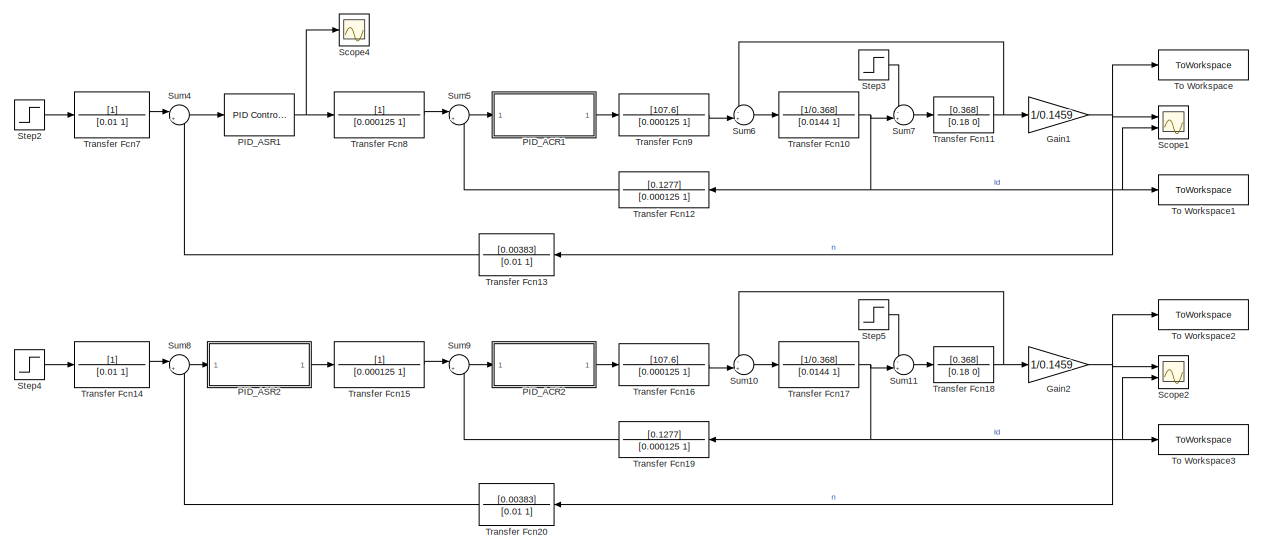
[diagram: root canvas - part 1/2, full width, top band]
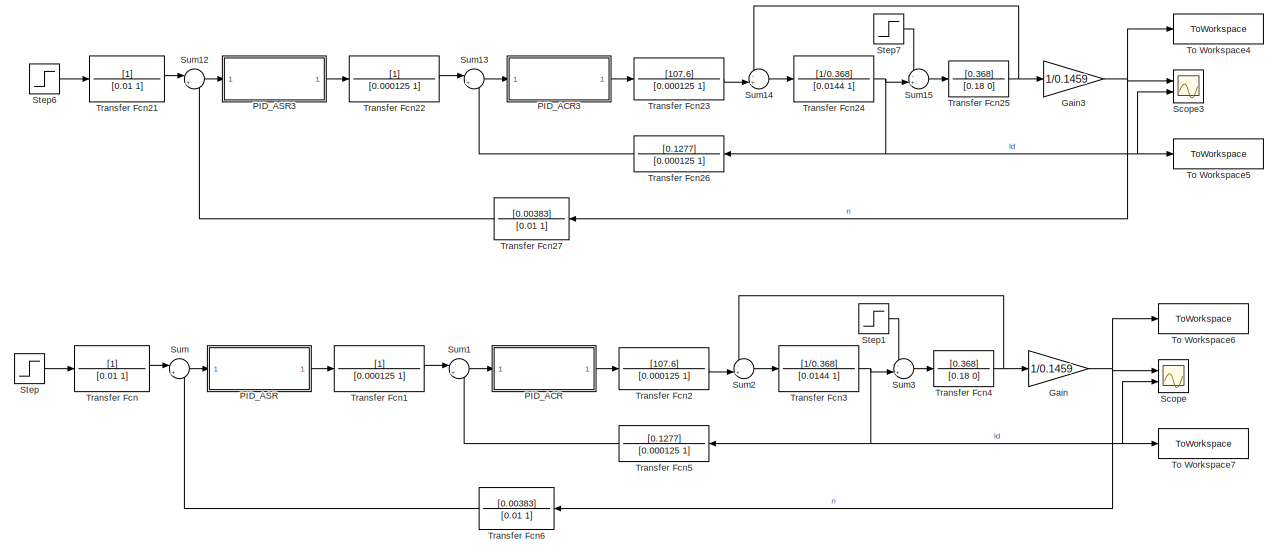
[diagram: root canvas - part 2/2, full width, bottom band]
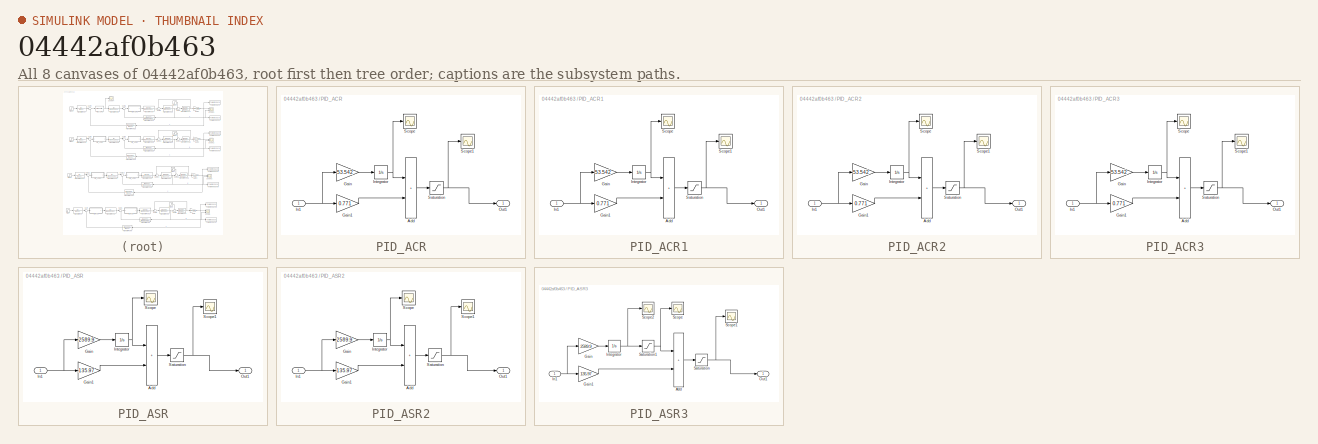
[diagram: thumbnail index - all 8 canvases of the model, root first then tree order]
MODEL slx_04442af0b463
KIND model
CONFIG AbsTol = auto
CONFIG EnableMultiTasking = off
CONFIG FixedStep = auto
CONFIG MaxStep = 1e-5
CONFIG MinStep = auto
CONFIG RelTol = 1e-3
CONFIG SampleTimeConstraint = Unconstrained
CONFIG Solver = ode45
CONFIG SolverName = ode45
CONFIG StartTime = 0.0
CONFIG StopTime = 50.0
BLOCK [Gain] Gain
  Gain = 1/0.1459
BLOCK [Gain] Gain1
  Gain = 1/0.1459
BLOCK [Gain] Gain2
  Gain = 1/0.1459
BLOCK [Gain] Gain3
  Gain = 1/0.1459
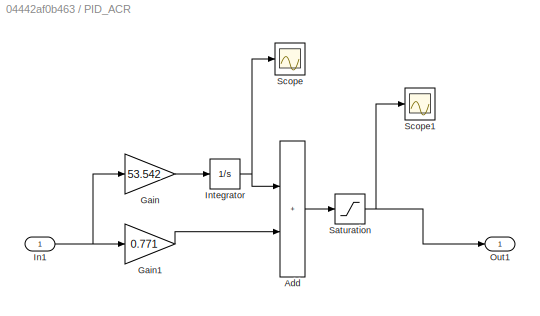
BLOCK [SubSystem] PID_ACR
  Ports = [1, 1]
  RequestExecContextInheritance = off
BLOCK [Sum] PID_ACR/Add
  IconShape = rectangular
  Ports = [2, 1]
BLOCK [Gain] PID_ACR/Gain
  Gain = 53.542
BLOCK [Gain] PID_ACR/Gain1
  Gain = 0.771
BLOCK [Inport] PID_ACR/In1
BLOCK [Integrator] PID_ACR/Integrator
  LimitOutput = on
  LowerSaturationLimit = -5
  Ports = [1, 1]
  UpperSaturationLimit = 5
BLOCK [Outport] PID_ACR/Out1
BLOCK [Saturate] PID_ACR/Saturation
  LowerLimit = -5
  UpperLimit = 5
BLOCK [Scope] PID_ACR/Scope
  Floating = off
  NumInputPorts = 1
  Ports = [1]
  ScopeSpecificationString = Simulink.scopes.TimeScopeBlockCfg('CurrentConfiguration', extmgr.ConfigurationSet(extmgr.Configuration('Core','General UI',true),extmgr.Configuration('Core','Source UI',true),extmgr.Configuration('Sources','WiredSimulink',true,'DataLoggingVariableName','ScopeData3'),extmgr.Configuration('Visuals','Time Domain',true,'SerializedDisplays',{struct('MinYLimReal','-0.47573','MaxYLimReal','4.28156','YLab...<+1402ch>  <repeated x4 — deduplicated; at blocks: Scope>
BLOCK [Scope] PID_ACR/Scope1
  Floating = off
  NumInputPorts = 1
  Ports = [1]
  ScopeSpecificationString = Simulink.scopes.TimeScopeBlockCfg('CurrentConfiguration', extmgr.ConfigurationSet(extmgr.Configuration('Core','General UI',true),extmgr.Configuration('Core','Source UI',true),extmgr.Configuration('Sources','WiredSimulink',true,'DataLoggingVariableName','ScopeData4'),extmgr.Configuration('Visuals','Time Domain',true,'SerializedDisplays',{struct('MinYLimReal','-0.62847','MaxYLimReal','5.62539','YLab...<+1402ch>  <repeated x4 — deduplicated; at blocks: Scope1>
BLOCK [SubSystem] PID_ACR1
  Ports = [1, 1]
  RequestExecContextInheritance = off
BLOCK [Sum] PID_ACR1/Add
  IconShape = rectangular
  Ports = [2, 1]
BLOCK [Gain] PID_ACR1/Gain
  Gain = 53.542
BLOCK [Gain] PID_ACR1/Gain1
  Gain = 0.771
BLOCK [Inport] PID_ACR1/In1
BLOCK [Integrator] PID_ACR1/Integrator
  LimitOutput = on
  LowerSaturationLimit = -5
  Ports = [1, 1]
  UpperSaturationLimit = 5
BLOCK [Outport] PID_ACR1/Out1
BLOCK [Saturate] PID_ACR1/Saturation
  LowerLimit = -5
  UpperLimit = 5
BLOCK [Scope] PID_ACR1/Scope
  Floating = off
  NumInputPorts = 1
  Ports = [1]
BLOCK [Scope] PID_ACR1/Scope1
  Floating = off
  NumInputPorts = 1
  Ports = [1]
BLOCK [SubSystem] PID_ACR2
  Ports = [1, 1]
  RequestExecContextInheritance = off
BLOCK [Sum] PID_ACR2/Add
  IconShape = rectangular
  Ports = [2, 1]
BLOCK [Gain] PID_ACR2/Gain
  Gain = 53.542
BLOCK [Gain] PID_ACR2/Gain1
  Gain = 0.771
BLOCK [Inport] PID_ACR2/In1
BLOCK [Integrator] PID_ACR2/Integrator
  LimitOutput = on
  LowerSaturationLimit = -5
  Ports = [1, 1]
  UpperSaturationLimit = 5
BLOCK [Outport] PID_ACR2/Out1
BLOCK [Saturate] PID_ACR2/Saturation
  LowerLimit = -5
  UpperLimit = 5
BLOCK [Scope] PID_ACR2/Scope
  Floating = off
  NumInputPorts = 1
  Ports = [1]
BLOCK [Scope] PID_ACR2/Scope1
  Floating = off
  NumInputPorts = 1
  Ports = [1]
BLOCK [SubSystem] PID_ACR3
  Ports = [1, 1]
  RequestExecContextInheritance = off
BLOCK [Sum] PID_ACR3/Add
  IconShape = rectangular
  Ports = [2, 1]
BLOCK [Gain] PID_ACR3/Gain
  Gain = 53.542
BLOCK [Gain] PID_ACR3/Gain1
  Gain = 0.771
BLOCK [Inport] PID_ACR3/In1
BLOCK [Integrator] PID_ACR3/Integrator
  LimitOutput = on
  LowerSaturationLimit = -5
  Ports = [1, 1]
  UpperSaturationLimit = 5
BLOCK [Outport] PID_ACR3/Out1
BLOCK [Saturate] PID_ACR3/Saturation
  LowerLimit = -5
  UpperLimit = 5
BLOCK [Scope] PID_ACR3/Scope
  Floating = off
  NumInputPorts = 1
  Ports = [1]
BLOCK [Scope] PID_ACR3/Scope1
  Floating = off
  NumInputPorts = 1
  Ports = [1]
BLOCK [SubSystem] PID_ASR
  Ports = [1, 1]
  RequestExecContextInheritance = off
BLOCK [Sum] PID_ASR/Add
  IconShape = rectangular
  Ports = [2, 1]
BLOCK [Gain] PID_ASR/Gain
  Gain = 2589.9
BLOCK [Gain] PID_ASR/Gain1
  Gain = 135.97
BLOCK [Inport] PID_ASR/In1
BLOCK [Integrator] PID_ASR/Integrator
  LimitOutput = on
  LowerSaturationLimit = -5
  Ports = [1, 1]
  UpperSaturationLimit = 5
BLOCK [Outport] PID_ASR/Out1
BLOCK [Saturate] PID_ASR/Saturation
  LowerLimit = -5
  UpperLimit = 5
BLOCK [Scope] PID_ASR/Scope
  Floating = off
  NumInputPorts = 1
  Ports = [1]
  ScopeSpecificationString = Simulink.scopes.TimeScopeBlockCfg('CurrentConfiguration', extmgr.ConfigurationSet(extmgr.Configuration('Core','General UI',true),extmgr.Configuration('Core','Source UI',true),extmgr.Configuration('Sources','WiredSimulink',true,'DataLoggingVariableName','ScopeData1'),extmgr.Configuration('Visuals','Time Domain',true,'SerializedDisplays',{struct('MinYLimReal','-1.25','MaxYLimReal','11.25','YLabelRea...<+1355ch>
BLOCK [Scope] PID_ASR/Scope1
  Floating = off
  NumInputPorts = 1
  Ports = [1]
  ScopeSpecificationString = Simulink.scopes.TimeScopeBlockCfg('CurrentConfiguration', extmgr.ConfigurationSet(extmgr.Configuration('Core','General UI',true),extmgr.Configuration('Core','Source UI',true),extmgr.Configuration('Sources','WiredSimulink',true,'DataLoggingVariableName','ScopeData2'),extmgr.Configuration('Visuals','Time Domain',true,'SerializedDisplays',{struct('MinYLimReal','-1.25','MaxYLimReal','11.25','YLabelRea...<+1355ch>  <repeated x3 — deduplicated; at blocks: Scope1>
BLOCK [Reference] PID_ASR1  REF=simulink/Continuous/PID Controller
  Ports = [1, 1]
  SourceBlock = simulink/Continuous/PID Controller
  SourceProductBaseCode = SL
  SourceType = PID 1dof
BLOCK [SubSystem] PID_ASR2
  Ports = [1, 1]
  RequestExecContextInheritance = off
BLOCK [Sum] PID_ASR2/Add
  IconShape = rectangular
  Ports = [2, 1]
BLOCK [Gain] PID_ASR2/Gain
  Gain = 2589.9
BLOCK [Gain] PID_ASR2/Gain1
  Gain = 135.97
BLOCK [Inport] PID_ASR2/In1
BLOCK [Integrator] PID_ASR2/Integrator
  LowerSaturationLimit = -5
  Ports = [1, 1]
  UpperSaturationLimit = 5
BLOCK [Outport] PID_ASR2/Out1
BLOCK [Saturate] PID_ASR2/Saturation
  LowerLimit = -5
  UpperLimit = 5
BLOCK [Scope] PID_ASR2/Scope
  Floating = off
  NumInputPorts = 1
  Ports = [1]
  ScopeSpecificationString = Simulink.scopes.TimeScopeBlockCfg('CurrentConfiguration', extmgr.ConfigurationSet(extmgr.Configuration('Core','General UI',true),extmgr.Configuration('Core','Source UI',true),extmgr.Configuration('Sources','WiredSimulink',true,'DataLoggingVariableName','ScopeData1'),extmgr.Configuration('Visuals','Time Domain',true,'SerializedDisplays',{struct('MinYLimReal','-348959.96716','MaxYLimReal','3140639.7...<+1407ch>
BLOCK [Scope] PID_ASR2/Scope1
  Floating = off
  NumInputPorts = 1
  Ports = [1]
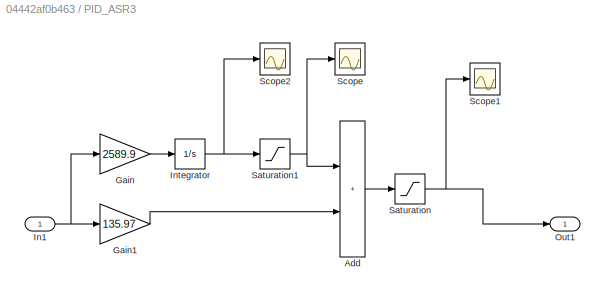
BLOCK [SubSystem] PID_ASR3
  Ports = [1, 1]
  RequestExecContextInheritance = off
BLOCK [Sum] PID_ASR3/Add
  IconShape = rectangular
  Ports = [2, 1]
BLOCK [Gain] PID_ASR3/Gain
  Gain = 2589.9
BLOCK [Gain] PID_ASR3/Gain1
  Gain = 135.97
BLOCK [Inport] PID_ASR3/In1
BLOCK [Integrator] PID_ASR3/Integrator
  LowerSaturationLimit = -10
  Ports = [1, 1]
  UpperSaturationLimit = 10
BLOCK [Outport] PID_ASR3/Out1
BLOCK [Saturate] PID_ASR3/Saturation
  LowerLimit = -5
  UpperLimit = 5
BLOCK [Saturate] PID_ASR3/Saturation1
  LowerLimit = -5
  UpperLimit = 5
BLOCK [Scope] PID_ASR3/Scope
  Floating = off
  NumInputPorts = 1
  Ports = [1]
  ScopeSpecificationString = Simulink.scopes.TimeScopeBlockCfg('CurrentConfiguration', extmgr.ConfigurationSet(extmgr.Configuration('Core','General UI',true),extmgr.Configuration('Core','Source UI',true),extmgr.Configuration('Sources','WiredSimulink',true,'DataLoggingVariableName','ScopeData1'),extmgr.Configuration('Visuals','Time Domain',true,'SerializedDisplays',{struct('MinYLimReal','-1.25','MaxYLimReal','11.25','YLabelRea...<+1355ch>
BLOCK [Scope] PID_ASR3/Scope1
  Floating = off
  NumInputPorts = 1
  Ports = [1]
BLOCK [Scope] PID_ASR3/Scope2
  Floating = off
  NumInputPorts = 1
  Ports = [1]
  ScopeSpecificationString = Simulink.scopes.TimeScopeBlockCfg('CurrentConfiguration', extmgr.ConfigurationSet(extmgr.Configuration('Core','General UI',true),extmgr.Configuration('Core','Source UI',true),extmgr.Configuration('Sources','WiredSimulink',true,'DataLoggingVariableName','ScopeData5'),extmgr.Configuration('Visuals','Time Domain',true,'SerializedDisplays',{struct('MinYLimReal','-1.25','MaxYLimReal','11.25','YLabelRea...<+1345ch>
BLOCK [Scope] Scope
  Floating = off
  NumInputPorts = 2
  Ports = [2]
  ScopeSpecificationString = Simulink.scopes.TimeScopeBlockCfg('CurrentConfiguration', extmgr.ConfigurationSet(extmgr.Configuration('Core','General UI',true),extmgr.Configuration('Core','Source UI',true),extmgr.Configuration('Sources','WiredSimulink',true,'DataLoggingVariableName','ScopeData1'),extmgr.Configuration('Visuals','Time Domain',true,'SerializedDisplays',{struct('MinYLimReal','-4296.50994','MaxYLimReal','477.38999',...<+2082ch>
BLOCK [Scope] Scope1
  Floating = off
  NumInputPorts = 2
  Ports = [2]
  ScopeSpecificationString = Simulink.scopes.TimeScopeBlockCfg('CurrentConfiguration', extmgr.ConfigurationSet(extmgr.Configuration('Core','General UI',true),extmgr.Configuration('Core','Source UI',true),extmgr.Configuration('Sources','WiredSimulink',true,'DataLoggingVariableName','ScopeData2'),extmgr.Configuration('Visuals','Time Domain',true,'SerializedDisplays',{struct('MinYLimReal','-4296.50994','MaxYLimReal','477.38999',...<+2083ch>
BLOCK [Scope] Scope2
  Floating = off
  NumInputPorts = 2
  Ports = [2]
  ScopeSpecificationString = Simulink.scopes.TimeScopeBlockCfg('CurrentConfiguration', extmgr.ConfigurationSet(extmgr.Configuration('Core','General UI',true),extmgr.Configuration('Core','Source UI',true),extmgr.Configuration('Sources','WiredSimulink',true,'DataLoggingVariableName','ScopeData3'),extmgr.Configuration('Visuals','Time Domain',true,'SerializedDisplays',{struct('MinYLimReal','-4296.50994','MaxYLimReal','477.38999',...<+2086ch>
BLOCK [Scope] Scope3
  Floating = off
  NumInputPorts = 2
  Ports = [2]
  ScopeSpecificationString = Simulink.scopes.TimeScopeBlockCfg('CurrentConfiguration', extmgr.ConfigurationSet(extmgr.Configuration('Core','General UI',true),extmgr.Configuration('Core','Source UI',true),extmgr.Configuration('Sources','WiredSimulink',true,'DataLoggingVariableName','ScopeData4'),extmgr.Configuration('Visuals','Time Domain',true,'SerializedDisplays',{struct('MinYLimReal','-4296.50994','MaxYLimReal','477.38999',...<+2086ch>
BLOCK [Scope] Scope4
  Floating = off
  NumInputPorts = 1
  Ports = [1]
  ScopeSpecificationString = Simulink.scopes.TimeScopeBlockCfg('CurrentConfiguration', extmgr.ConfigurationSet(extmgr.Configuration('Core','General UI',true),extmgr.Configuration('Core','Source UI',true),extmgr.Configuration('Sources','WiredSimulink',true,'DataLoggingVariableName','ScopeData5'),extmgr.Configuration('Visuals','Time Domain',true),extmgr.Configuration('Tools','Plot Navigation',true),extmgr.Configuration('Tools',...<+40ch>
BLOCK [Step] Step
  After = 10
  SampleTime = 0
  Time = 0
BLOCK [Step] Step1
  After = 52.2
  SampleTime = 0
  Time = 0
BLOCK [Step] Step2
  After = 10
  SampleTime = 0
  Time = 0
BLOCK [Step] Step3
  After = 52.2
  SampleTime = 0
  Time = 0
BLOCK [Step] Step4
  After = 10
  SampleTime = 0
  Time = 0
BLOCK [Step] Step5
  After = 52.2
  SampleTime = 0
  Time = 0
BLOCK [Step] Step6
  After = 10
  SampleTime = 0
  Time = 0
BLOCK [Step] Step7
  After = 52.2
  SampleTime = 0
  Time = 0
BLOCK [Sum] Sum
  Inputs = |+-
  Ports = [2, 1]
BLOCK [Sum] Sum1
  Inputs = |+-
  Ports = [2, 1]
BLOCK [Sum] Sum10
  Inputs = -+|
  Ports = [2, 1]
BLOCK [Sum] Sum11
  Inputs = -+|
  Ports = [2, 1]
BLOCK [Sum] Sum12
  Inputs = |+-
  Ports = [2, 1]
BLOCK [Sum] Sum13
  Inputs = |+-
  Ports = [2, 1]
BLOCK [Sum] Sum14
  Inputs = -+|
  Ports = [2, 1]
BLOCK [Sum] Sum15
  Inputs = -+|
  Ports = [2, 1]
BLOCK [Sum] Sum2
  Inputs = -+|
  Ports = [2, 1]
BLOCK [Sum] Sum3
  Inputs = -+|
  Ports = [2, 1]
BLOCK [Sum] Sum4
  Inputs = |+-
  Ports = [2, 1]
BLOCK [Sum] Sum5
  Inputs = |+-
  Ports = [2, 1]
BLOCK [Sum] Sum6
  Inputs = -+|
  Ports = [2, 1]
BLOCK [Sum] Sum7
  Inputs = -+|
  Ports = [2, 1]
BLOCK [Sum] Sum8
  Inputs = |+-
  Ports = [2, 1]
BLOCK [Sum] Sum9
  Inputs = |+-
  Ports = [2, 1]
BLOCK [ToWorkspace] To Workspace
  FixptAsFi = on
  MaxDataPoints = inf
  Ports = [1]
  SampleTime = -1
  SaveFormat = Timeseries
  VariableName = n1
BLOCK [ToWorkspace] To Workspace1
  FixptAsFi = on
  MaxDataPoints = inf
  Ports = [1]
  SampleTime = -1
  SaveFormat = Timeseries
  VariableName = Id1
BLOCK [ToWorkspace] To Workspace2
  FixptAsFi = on
  MaxDataPoints = inf
  Ports = [1]
  SampleTime = -1
  SaveFormat = Timeseries
  VariableName = n2
BLOCK [ToWorkspace] To Workspace3
  FixptAsFi = on
  MaxDataPoints = inf
  Ports = [1]
  SampleTime = -1
  SaveFormat = Timeseries
  VariableName = Id2
BLOCK [ToWorkspace] To Workspace4
  FixptAsFi = on
  MaxDataPoints = inf
  Ports = [1]
  SampleTime = -1
  SaveFormat = Timeseries
  VariableName = n3
BLOCK [ToWorkspace] To Workspace5
  FixptAsFi = on
  MaxDataPoints = inf
  Ports = [1]
  SampleTime = -1
  SaveFormat = Timeseries
  VariableName = Id3
BLOCK [ToWorkspace] To Workspace6
  FixptAsFi = on
  MaxDataPoints = inf
  Ports = [1]
  SampleTime = -1
  SaveFormat = Timeseries
  VariableName = n
BLOCK [ToWorkspace] To Workspace7
  FixptAsFi = on
  MaxDataPoints = inf
  Ports = [1]
  SampleTime = -1
  SaveFormat = Timeseries
  VariableName = Id
BLOCK [TransferFcn] Transfer Fcn
  Denominator = [0.01 1]
BLOCK [TransferFcn] Transfer Fcn1
  Denominator = [0.000125 1]
BLOCK [TransferFcn] Transfer Fcn10
  Denominator = [0.0144 1]
  Numerator = [1/0.368]
BLOCK [TransferFcn] Transfer Fcn11
  Denominator = [0.18 0]
  Numerator = [0.368]
BLOCK [TransferFcn] Transfer Fcn12
  Denominator = [0.000125 1]
  Numerator = [0.1277]
BLOCK [TransferFcn] Transfer Fcn13
  Denominator = [0.01 1]
  Numerator = [0.00383]
BLOCK [TransferFcn] Transfer Fcn14
  Denominator = [0.01 1]
BLOCK [TransferFcn] Transfer Fcn15
  Denominator = [0.000125 1]
BLOCK [TransferFcn] Transfer Fcn16
  Denominator = [0.000125 1]
  Numerator = [107.6]
BLOCK [TransferFcn] Transfer Fcn17
  Denominator = [0.0144 1]
  Numerator = [1/0.368]
BLOCK [TransferFcn] Transfer Fcn18
  Denominator = [0.18 0]
  Numerator = [0.368]
BLOCK [TransferFcn] Transfer Fcn19
  Denominator = [0.000125 1]
  Numerator = [0.1277]
BLOCK [TransferFcn] Transfer Fcn2
  Denominator = [0.000125 1]
  Numerator = [107.6]
BLOCK [TransferFcn] Transfer Fcn20
  Denominator = [0.01 1]
  Numerator = [0.00383]
BLOCK [TransferFcn] Transfer Fcn21
  Denominator = [0.01 1]
BLOCK [TransferFcn] Transfer Fcn22
  Denominator = [0.000125 1]
BLOCK [TransferFcn] Transfer Fcn23
  Denominator = [0.000125 1]
  Numerator = [107.6]
BLOCK [TransferFcn] Transfer Fcn24
  Denominator = [0.0144 1]
  Numerator = [1/0.368]
BLOCK [TransferFcn] Transfer Fcn25
  Denominator = [0.18 0]
  Numerator = [0.368]
BLOCK [TransferFcn] Transfer Fcn26
  Denominator = [0.000125 1]
  Numerator = [0.1277]
BLOCK [TransferFcn] Transfer Fcn27
  Denominator = [0.01 1]
  Numerator = [0.00383]
BLOCK [TransferFcn] Transfer Fcn3
  Denominator = [0.0144 1]
  Numerator = [1/0.368]
BLOCK [TransferFcn] Transfer Fcn4
  Denominator = [0.18 0]
  Numerator = [0.368]
BLOCK [TransferFcn] Transfer Fcn5
  Denominator = [0.000125 1]
  Numerator = [0.1277]
BLOCK [TransferFcn] Transfer Fcn6
  Denominator = [0.01 1]
  Numerator = [0.00383]
BLOCK [TransferFcn] Transfer Fcn7
  Denominator = [0.01 1]
BLOCK [TransferFcn] Transfer Fcn8
  Denominator = [0.000125 1]
BLOCK [TransferFcn] Transfer Fcn9
  Denominator = [0.000125 1]
  Numerator = [107.6]
NET Gain1:1 -> Scope1:1, To Workspace:1, Transfer Fcn13:1
NET Gain2:1 -> Scope2:1, To Workspace2:1, Transfer Fcn20:1
NET Gain3:1 -> Scope3:1, To Workspace4:1, Transfer Fcn27:1
NET Gain:1 -> Scope:1, To Workspace6:1, Transfer Fcn6:1
LINE PID_ACR/Add:1 -> PID_ACR/Saturation:1
LINE PID_ACR/Gain1:1 -> PID_ACR/Add:2
LINE PID_ACR/Gain:1 -> PID_ACR/Integrator:1
NET PID_ACR/In1:1 -> PID_ACR/Gain1:1, PID_ACR/Gain:1
NET PID_ACR/Integrator:1 -> PID_ACR/Add:1, PID_ACR/Scope:1
NET PID_ACR/Saturation:1 -> PID_ACR/Out1:1, PID_ACR/Scope1:1
LINE PID_ACR1/Add:1 -> PID_ACR1/Saturation:1
LINE PID_ACR1/Gain1:1 -> PID_ACR1/Add:2
LINE PID_ACR1/Gain:1 -> PID_ACR1/Integrator:1
NET PID_ACR1/In1:1 -> PID_ACR1/Gain1:1, PID_ACR1/Gain:1
NET PID_ACR1/Integrator:1 -> PID_ACR1/Add:1, PID_ACR1/Scope:1
NET PID_ACR1/Saturation:1 -> PID_ACR1/Out1:1, PID_ACR1/Scope1:1
LINE PID_ACR1:1 -> Transfer Fcn9:1
LINE PID_ACR2/Add:1 -> PID_ACR2/Saturation:1
LINE PID_ACR2/Gain1:1 -> PID_ACR2/Add:2
LINE PID_ACR2/Gain:1 -> PID_ACR2/Integrator:1
NET PID_ACR2/In1:1 -> PID_ACR2/Gain1:1, PID_ACR2/Gain:1
NET PID_ACR2/Integrator:1 -> PID_ACR2/Add:1, PID_ACR2/Scope:1
NET PID_ACR2/Saturation:1 -> PID_ACR2/Out1:1, PID_ACR2/Scope1:1
LINE PID_ACR2:1 -> Transfer Fcn16:1
LINE PID_ACR3/Add:1 -> PID_ACR3/Saturation:1
LINE PID_ACR3/Gain1:1 -> PID_ACR3/Add:2
LINE PID_ACR3/Gain:1 -> PID_ACR3/Integrator:1
NET PID_ACR3/In1:1 -> PID_ACR3/Gain1:1, PID_ACR3/Gain:1
NET PID_ACR3/Integrator:1 -> PID_ACR3/Add:1, PID_ACR3/Scope:1
NET PID_ACR3/Saturation:1 -> PID_ACR3/Out1:1, PID_ACR3/Scope1:1
LINE PID_ACR3:1 -> Transfer Fcn23:1
LINE PID_ACR:1 -> Transfer Fcn2:1
LINE PID_ASR/Add:1 -> PID_ASR/Saturation:1
LINE PID_ASR/Gain1:1 -> PID_ASR/Add:2
LINE PID_ASR/Gain:1 -> PID_ASR/Integrator:1
NET PID_ASR/In1:1 -> PID_ASR/Gain1:1, PID_ASR/Gain:1
NET PID_ASR/Integrator:1 -> PID_ASR/Add:1, PID_ASR/Scope:1
NET PID_ASR/Saturation:1 -> PID_ASR/Out1:1, PID_ASR/Scope1:1
NET PID_ASR1:1 -> Scope4:1, Transfer Fcn8:1
LINE PID_ASR2/Add:1 -> PID_ASR2/Saturation:1
LINE PID_ASR2/Gain1:1 -> PID_ASR2/Add:2
LINE PID_ASR2/Gain:1 -> PID_ASR2/Integrator:1
NET PID_ASR2/In1:1 -> PID_ASR2/Gain1:1, PID_ASR2/Gain:1
NET PID_ASR2/Integrator:1 -> PID_ASR2/Add:1, PID_ASR2/Scope:1
NET PID_ASR2/Saturation:1 -> PID_ASR2/Out1:1, PID_ASR2/Scope1:1
LINE PID_ASR2:1 -> Transfer Fcn15:1
LINE PID_ASR3/Add:1 -> PID_ASR3/Saturation:1
LINE PID_ASR3/Gain1:1 -> PID_ASR3/Add:2
LINE PID_ASR3/Gain:1 -> PID_ASR3/Integrator:1
NET PID_ASR3/In1:1 -> PID_ASR3/Gain1:1, PID_ASR3/Gain:1
NET PID_ASR3/Integrator:1 -> PID_ASR3/Saturation1:1, PID_ASR3/Scope2:1
NET PID_ASR3/Saturation1:1 -> PID_ASR3/Add:1, PID_ASR3/Scope:1
NET PID_ASR3/Saturation:1 -> PID_ASR3/Out1:1, PID_ASR3/Scope1:1
LINE PID_ASR3:1 -> Transfer Fcn22:1
LINE PID_ASR:1 -> Transfer Fcn1:1
LINE Step1:1 -> Sum3:1
LINE Step2:1 -> Transfer Fcn7:1
LINE Step3:1 -> Sum7:1
LINE Step4:1 -> Transfer Fcn14:1
LINE Step5:1 -> Sum11:1
LINE Step6:1 -> Transfer Fcn21:1
LINE Step7:1 -> Sum15:1
LINE Step:1 -> Transfer Fcn:1
LINE Sum10:1 -> Transfer Fcn17:1
LINE Sum11:1 -> Transfer Fcn18:1
LINE Sum12:1 -> PID_ASR3:1
LINE Sum13:1 -> PID_ACR3:1
LINE Sum14:1 -> Transfer Fcn24:1
LINE Sum15:1 -> Transfer Fcn25:1
LINE Sum1:1 -> PID_ACR:1
LINE Sum2:1 -> Transfer Fcn3:1
LINE Sum3:1 -> Transfer Fcn4:1
LINE Sum4:1 -> PID_ASR1:1
LINE Sum5:1 -> PID_ACR1:1
LINE Sum6:1 -> Transfer Fcn10:1
LINE Sum7:1 -> Transfer Fcn11:1
LINE Sum8:1 -> PID_ASR2:1
LINE Sum9:1 -> PID_ACR2:1
LINE Sum:1 -> PID_ASR:1
NET Transfer Fcn10:1 -> Scope1:2, Sum7:2, To Workspace1:1, Transfer Fcn12:1
NET Transfer Fcn11:1 -> Gain1:1, Sum6:1
LINE Transfer Fcn12:1 -> Sum5:2
LINE Transfer Fcn13:1 -> Sum4:2
LINE Transfer Fcn14:1 -> Sum8:1
LINE Transfer Fcn15:1 -> Sum9:1
LINE Transfer Fcn16:1 -> Sum10:2
NET Transfer Fcn17:1 -> Scope2:2, Sum11:2, To Workspace3:1, Transfer Fcn19:1
NET Transfer Fcn18:1 -> Gain2:1, Sum10:1
LINE Transfer Fcn19:1 -> Sum9:2
LINE Transfer Fcn1:1 -> Sum1:1
LINE Transfer Fcn20:1 -> Sum8:2
LINE Transfer Fcn21:1 -> Sum12:1
LINE Transfer Fcn22:1 -> Sum13:1
LINE Transfer Fcn23:1 -> Sum14:2
NET Transfer Fcn24:1 -> Scope3:2, Sum15:2, To Workspace5:1, Transfer Fcn26:1
NET Transfer Fcn25:1 -> Gain3:1, Sum14:1
LINE Transfer Fcn26:1 -> Sum13:2
LINE Transfer Fcn27:1 -> Sum12:2
LINE Transfer Fcn2:1 -> Sum2:2
NET Transfer Fcn3:1 -> Scope:2, Sum3:2, To Workspace7:1, Transfer Fcn5:1
NET Transfer Fcn4:1 -> Gain:1, Sum2:1
LINE Transfer Fcn5:1 -> Sum1:2
LINE Transfer Fcn6:1 -> Sum:2
LINE Transfer Fcn7:1 -> Sum4:1
LINE Transfer Fcn8:1 -> Sum5:1
LINE Transfer Fcn9:1 -> Sum6:2
LINE Transfer Fcn:1 -> Sum:1
note: NET lines group one-source signal fan-out (src -> all destinations, sorted); 1:1 wires keep LINE
